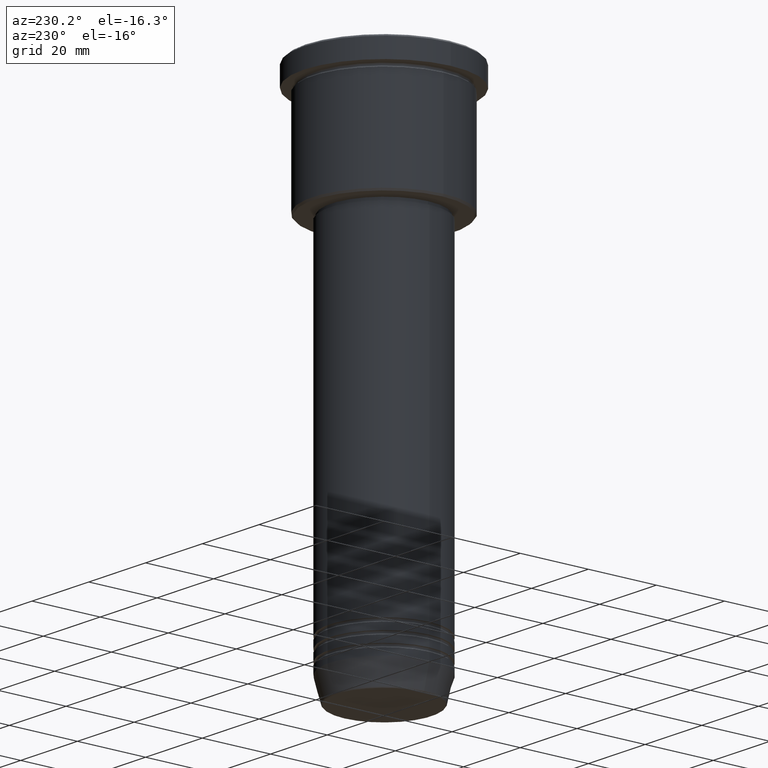
[diagram: clean part render]
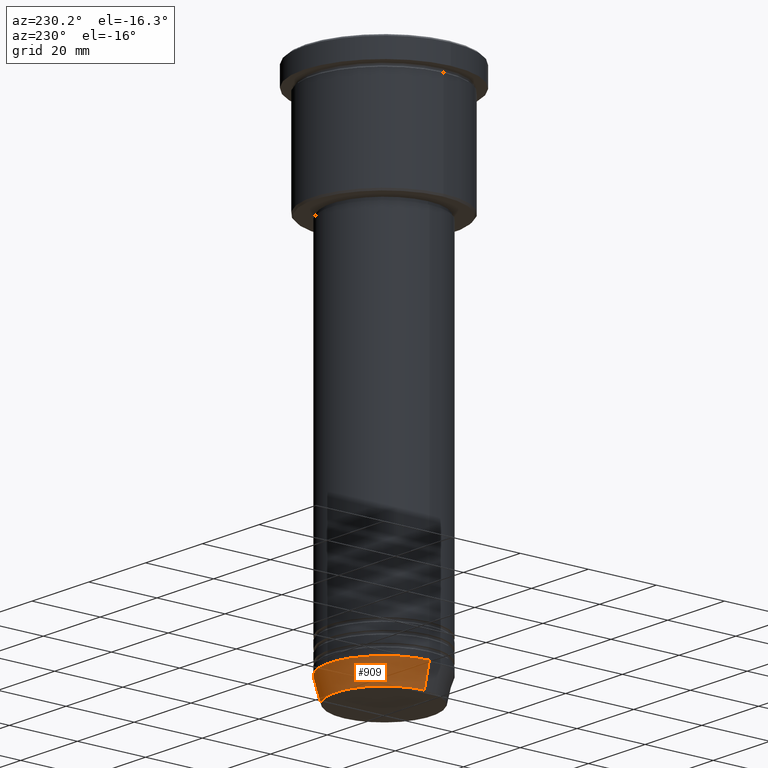
[diagram: same view with one face highlighted and labeled with its STEP entity id]
A machine part, auxiliary view. The second image highlights one B-rep face of the part: STEP entity #909.
In plain terms, the highlighted conical surface has half-angle 15 deg.
Its self-contained STEP definition (entity closure, byte-faithful):
#32 = ORIENTED_EDGE ( 'NONE', *, *, #345, .F. ) ;
#41 = EDGE_CURVE ( 'NONE', #478, #681, #315, .T. ) ;
#90 = CARTESIAN_POINT ( 'NONE',  ( -16.00000000000000000, 1.959434878635765131E-15, -144.0000000000000284 ) ) ;
#117 = VECTOR ( 'NONE', #190, 1000.000000000000000 ) ;
#132 = CARTESIAN_POINT ( 'NONE',  ( 0.000000000000000000, 0.000000000000000000, -144.0000000000000284 ) ) ;
#190 = DIRECTION ( 'NONE',  ( 0.2588190451025209060, 0.000000000000000000, 0.9659258262890682012 ) ) ;
#195 = VERTEX_POINT ( 'NONE', #479 ) ;
#228 = CARTESIAN_POINT ( 'NONE',  ( -14.22365507213719305, 1.850665122131324126E-15, -150.6294095225512706 ) ) ;
#259 = FACE_OUTER_BOUND ( 'NONE', #1128, .T. ) ;
#265 = DIRECTION ( 'NONE',  ( -0.000000000000000000, -0.000000000000000000, 1.000000000000000000 ) ) ;
#304 = EDGE_CURVE ( 'NONE', #681, #829, #454, .T. ) ;
#315 = CIRCLE ( 'NONE', #566, 14.22365507213719305 ) ;
#328 = CARTESIAN_POINT ( 'NONE',  ( 14.22365507213719305, 0.000000000000000000, -150.6294095225512706 ) ) ;
#345 = EDGE_CURVE ( 'NONE', #195, #829, #1038, .T. ) ;
#393 = CARTESIAN_POINT ( 'NONE',  ( 0.000000000000000000, 0.000000000000000000, -150.6294095225512706 ) ) ;
#400 = ORIENTED_EDGE ( 'NONE', *, *, #842, .F. ) ;
#454 = LINE ( 'NONE', #1005, #1113 ) ;
#478 = VERTEX_POINT ( 'NONE', #328 ) ;
#479 = CARTESIAN_POINT ( 'NONE',  ( 16.00000000000000000, 0.000000000000000000, -144.0000000000000284 ) ) ;
#493 = DIRECTION ( 'NONE',  ( -0.000000000000000000, -0.000000000000000000, 1.000000000000000000 ) ) ;
#566 = AXIS2_PLACEMENT_3D ( 'NONE', #393, #666, #752 ) ;
#618 = CARTESIAN_POINT ( 'NONE',  ( 16.00000000000000000, 0.000000000000000000, -144.0000000000000284 ) ) ;
#628 = DIRECTION ( 'NONE',  ( 1.000000000000000000, 0.000000000000000000, 0.000000000000000000 ) ) ;
#635 = ORIENTED_EDGE ( 'NONE', *, *, #41, .T. ) ;
#651 = AXIS2_PLACEMENT_3D ( 'NONE', #132, #493, #755 ) ;
#666 = DIRECTION ( 'NONE',  ( -0.000000000000000000, -0.000000000000000000, 1.000000000000000000 ) ) ;
#681 = VERTEX_POINT ( 'NONE', #228 ) ;
#694 = AXIS2_PLACEMENT_3D ( 'NONE', #984, #265, #628 ) ;
#731 = DIRECTION ( 'NONE',  ( -0.2588190451025209060, 3.169619151431766790E-17, 0.9659258262890682012 ) ) ;
#741 = ORIENTED_EDGE ( 'NONE', *, *, #304, .T. ) ;
#752 = DIRECTION ( 'NONE',  ( 1.000000000000000000, 0.000000000000000000, 0.000000000000000000 ) ) ;
#755 = DIRECTION ( 'NONE',  ( 1.000000000000000000, 0.000000000000000000, 0.000000000000000000 ) ) ;
#829 = VERTEX_POINT ( 'NONE', #90 ) ;
#842 = EDGE_CURVE ( 'NONE', #478, #195, #1169, .T. ) ;
#909 = ADVANCED_FACE ( 'NONE', ( #259 ), #1093, .T. ) ;
#984 = CARTESIAN_POINT ( 'NONE',  ( 0.000000000000000000, 0.000000000000000000, -144.0000000000000284 ) ) ;
#1005 = CARTESIAN_POINT ( 'NONE',  ( -16.00000000000000000, 1.959434878635765131E-15, -144.0000000000000284 ) ) ;
#1038 = CIRCLE ( 'NONE', #651, 16.00000000000000000 ) ;
#1093 = CONICAL_SURFACE ( 'NONE', #694, 16.00000000000000000, 0.2617993877991495744 ) ;
#1113 = VECTOR ( 'NONE', #731, 1000.000000000000000 ) ;
#1128 = EDGE_LOOP ( 'NONE', ( #635, #741, #32, #400 ) ) ;
#1169 = LINE ( 'NONE', #618, #117 ) ;